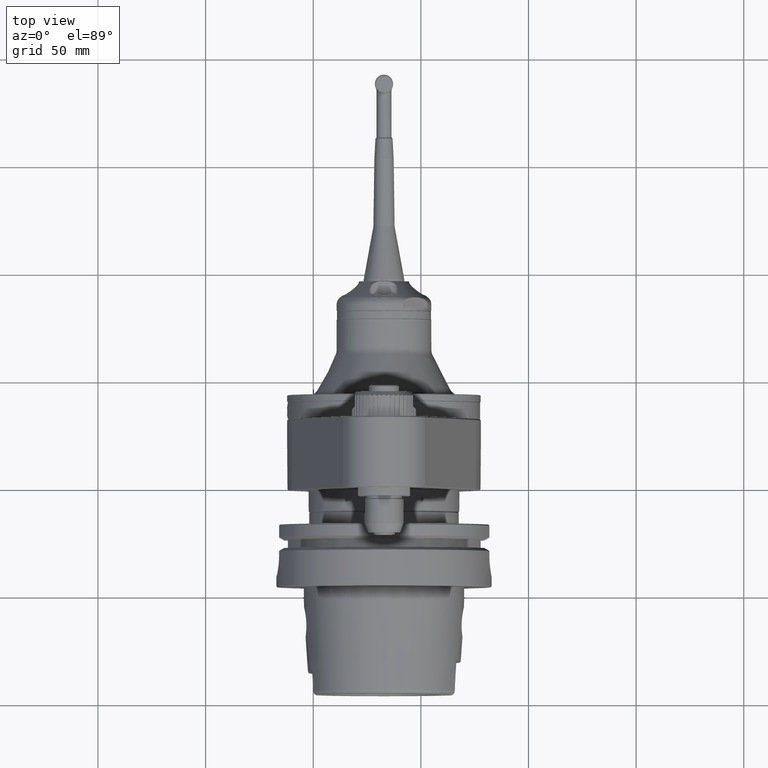
[diagram: clean part render]
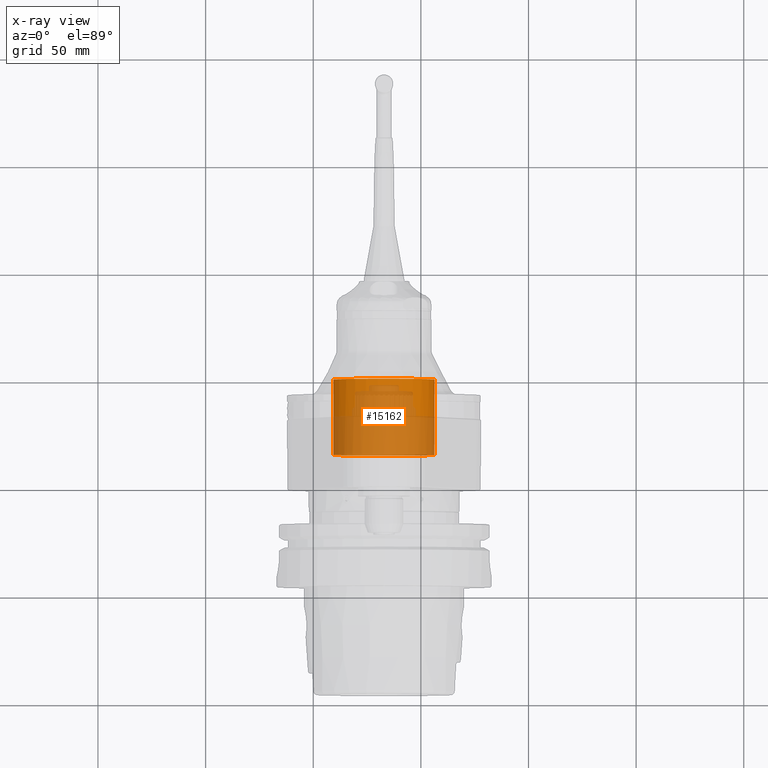
[diagram: x-ray — body ghosted, one internal face saturated and labeled with its STEP entity id]
A machine part, top view, then the same camera in x-ray: the body is ghosted and one INTERNAL B-rep face — a face not visible from any outside direction — is saturated and labeled: STEP entity #15162.
In plain terms, the highlighted cylindrical surface (bore or boss wall) has radius 23.5 mm, axis along (0, 1, 0).
Its self-contained STEP definition (entity closure, byte-faithful):
#650=LINE('',#22713,#1784);
#1784=VECTOR('',#18087,23.5);
#2904=CYLINDRICAL_SURFACE('',#16179,23.5);
#3269=FACE_OUTER_BOUND('',#4197,.T.);
#4197=EDGE_LOOP('',(#10113,#10114,#10115,#10116,#10117));
#5233=CIRCLE('',#16178,23.5);
#5234=CIRCLE('',#16180,23.5);
#5235=CIRCLE('',#16181,23.5);
#6113=VERTEX_POINT('',#22706);
#6114=VERTEX_POINT('',#22709);
#6115=VERTEX_POINT('',#22710);
#7661=EDGE_CURVE('',#6113,#6113,#5233,.T.);
#7662=EDGE_CURVE('',#6114,#6115,#5234,.T.);
#7663=EDGE_CURVE('',#6115,#6114,#5235,.T.);
#7664=EDGE_CURVE('',#6114,#6113,#650,.T.);
#10113=ORIENTED_EDGE('',*,*,#7662,.T.);
#10114=ORIENTED_EDGE('',*,*,#7663,.T.);
#10115=ORIENTED_EDGE('',*,*,#7664,.T.);
#10116=ORIENTED_EDGE('',*,*,#7661,.F.);
#10117=ORIENTED_EDGE('',*,*,#7664,.F.);
#15162=ADVANCED_FACE('',(#3269),#2904,.F.);
#16178=AXIS2_PLACEMENT_3D('',#22707,#18079,#18080);
#16179=AXIS2_PLACEMENT_3D('',#22708,#18081,#18082);
#16180=AXIS2_PLACEMENT_3D('',#22711,#18083,#18084);
#16181=AXIS2_PLACEMENT_3D('',#22712,#18085,#18086);
#18079=DIRECTION('center_axis',(0.,-1.,0.));
#18080=DIRECTION('ref_axis',(1.,0.,0.));
#18081=DIRECTION('center_axis',(0.,1.,0.));
#18082=DIRECTION('ref_axis',(1.,0.,0.));
#18083=DIRECTION('center_axis',(0.,-1.,0.));
#18084=DIRECTION('ref_axis',(1.,0.,0.));
#18085=DIRECTION('center_axis',(0.,-1.,0.));
#18086=DIRECTION('ref_axis',(1.,0.,0.));
#18087=DIRECTION('',(0.,1.,0.));
#22706=CARTESIAN_POINT('',(-23.5,43.5,2.87791997799628E-15));
#22707=CARTESIAN_POINT('Origin',(0.,43.5,0.));
#22708=CARTESIAN_POINT('Origin',(0.,-3.75,0.));
#22709=CARTESIAN_POINT('',(-23.5,8.5,2.87791997799628E-15));
#22710=CARTESIAN_POINT('',(-2.87791997799628E-15,8.5,23.5));
#22711=CARTESIAN_POINT('Origin',(0.,8.5,0.));
#22712=CARTESIAN_POINT('Origin',(0.,8.5,0.));
#22713=CARTESIAN_POINT('',(-23.5,-3.75,2.87791997799628E-15));